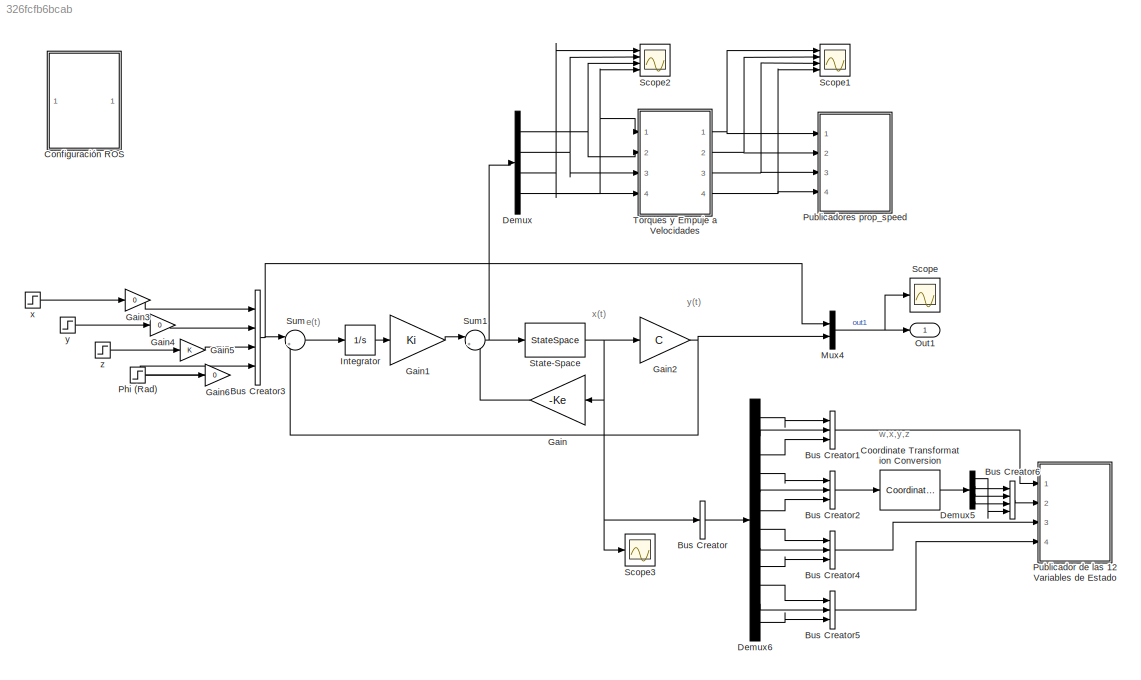
MODEL slx_326fcfb6bcab
KIND model
CONFIG AbsTol = auto
CONFIG EnableMultiTasking = off
CONFIG FixedStep = T
CONFIG MaxStep = auto
CONFIG MinStep = auto
CONFIG RelTol = 1e-3
CONFIG SampleTimeConstraint = Unconstrained
CONFIG SolverName = FixedStepAuto
CONFIG StartTime = 0.0
CONFIG StopTime = 20
BLOCK [BusCreator] Bus Creator
  DisplayOption = bar
  InheritFromInputs = on
  Inputs = 1
  Ports = [1, 1]
BLOCK [BusCreator] Bus Creator1
  DisplayOption = bar
  InheritFromInputs = on
  Inputs = 3
  Ports = [3, 1]
BLOCK [BusCreator] Bus Creator2
  DisplayOption = bar
  InheritFromInputs = on
  Inputs = 3
  Ports = [3, 1]
BLOCK [BusCreator] Bus Creator3
  DisplayOption = bar
  InheritFromInputs = on
  Inputs = 4
  Ports = [4, 1]
BLOCK [BusCreator] Bus Creator4
  DisplayOption = bar
  InheritFromInputs = on
  Inputs = 3
  Ports = [3, 1]
BLOCK [BusCreator] Bus Creator5
  DisplayOption = bar
  InheritFromInputs = on
  Inputs = 3
  Ports = [3, 1]
BLOCK [BusCreator] Bus Creator6
  DisplayOption = bar
  InheritFromInputs = on
  Inputs = 4
  Ports = [4, 1]
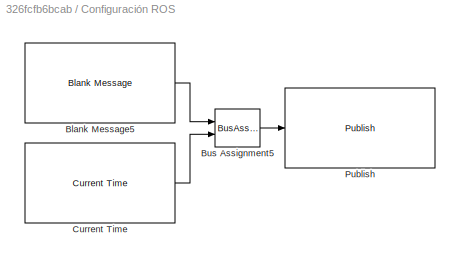
BLOCK [SubSystem] Configuración ROS
  Ports = []
  RequestExecContextInheritance = off
BLOCK [Reference] Configuración ROS/Blank Message5  REF=robotlib/Blank Message
  Ports = [0, 1]
  SourceBlock = robotlib/Blank Message
  SourceProductBaseCode = RR
  SourceType = ROS Blank Message
BLOCK [BusAssignment] Configuración ROS/Bus Assignment5
  AssignedSignals = Clock_
  Ports = [2, 1]
BLOCK [Reference] Configuración ROS/Current Time  REF=robotlib/Current Time
  Ports = [0, 1]
  SourceBlock = robotlib/Current Time
  SourceProductBaseCode = RR
  SourceType = ros.slros.internal.block.CurrentTime
BLOCK [Reference] Configuración ROS/Publish  REF=robotlib/Publish
  Ports = [1]
  SourceBlock = robotlib/Publish
  SourceProductBaseCode = RR
  SourceType = ROS Publish
BLOCK [Reference] Coordinate Transformation Conversion  REF=robotcorelib/Coordinate Transformation Conversion
  Ports = [1, 1]
  SourceBlock = robotcorelib/Coordinate Transformation Conversion
  SourceProductBaseCode = NV,RO,RR,UV
  SourceType = robotics.slcore.internal.block.CoordinateTransformationConversion
BLOCK [Demux] Demux
  Ports = [1, 4]
BLOCK [Demux] Demux5
  Ports = [1, 4]
BLOCK [Demux] Demux6
  Outputs = 12
  Ports = [1, 12]
BLOCK [Gain] Gain
  Gain = -Ke
  Multiplication = Matrix(K*u) (u vector)
BLOCK [Gain] Gain1
  Gain = Ki
  Multiplication = Matrix(K*u) (u vector)
BLOCK [Gain] Gain2
  Gain = C
  Multiplication = Matrix(K*u) (u vector)
BLOCK [Gain] Gain3
  Gain = 0
BLOCK [Gain] Gain4
  Gain = 0
BLOCK [Gain] Gain5
BLOCK [Gain] Gain6
  Gain = 0
BLOCK [Integrator] Integrator
  Ports = [1, 1]
BLOCK [Mux] Mux4
  DisplayOption = bar
  Inputs = 2
  Ports = [2, 1]
BLOCK [Outport] Out1
BLOCK [Step] Phi (Rad)
  SampleTime = T
  Time = 3
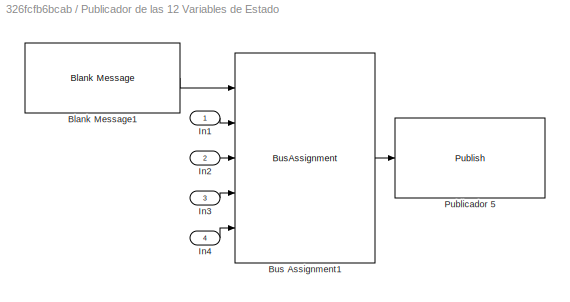
BLOCK [SubSystem] Publicador de las 12 Variables de Estado
  Ports = [4]
  RequestExecContextInheritance = off
BLOCK [Reference] Publicador de las 12 Variables de Estado/Blank Message1  REF=robotlib/Blank Message
  Ports = [0, 1]
  SourceBlock = robotlib/Blank Message
  SourceProductBaseCode = RR
  SourceType = ROS Blank Message
BLOCK [BusAssignment] Publicador de las 12 Variables de Estado/Bus Assignment1
  AssignedSignals = Pose.Position,Pose.Orientation,Twist.Linear,Twist.Angular
  Ports = [5, 1]
BLOCK [Inport] Publicador de las 12 Variables de Estado/In1
BLOCK [Inport] Publicador de las 12 Variables de Estado/In2
  Port = 2
BLOCK [Inport] Publicador de las 12 Variables de Estado/In3
  Port = 3
BLOCK [Inport] Publicador de las 12 Variables de Estado/In4
  Port = 4
BLOCK [Reference] Publicador de las 12 Variables de Estado/Publicador 5  REF=robotlib/Publish
  Ports = [1]
  SourceBlock = robotlib/Publish
  SourceProductBaseCode = RR
  SourceType = ROS Publish
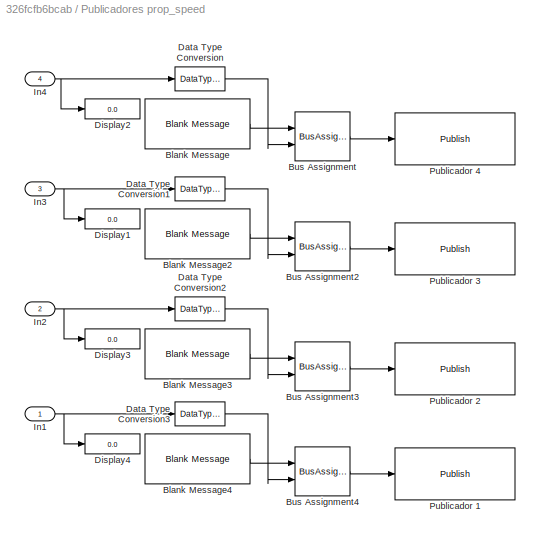
BLOCK [SubSystem] Publicadores prop_speed
  Ports = [4]
  RequestExecContextInheritance = off
BLOCK [Reference] Publicadores prop_speed/Blank Message  REF=robotlib/Blank Message
  Ports = [0, 1]
  SourceBlock = robotlib/Blank Message
  SourceProductBaseCode = RR
  SourceType = ROS Blank Message
BLOCK [Reference] Publicadores prop_speed/Blank Message2  REF=robotlib/Blank Message
  Ports = [0, 1]
  SourceBlock = robotlib/Blank Message
  SourceProductBaseCode = RR
  SourceType = ROS Blank Message
BLOCK [Reference] Publicadores prop_speed/Blank Message3  REF=robotlib/Blank Message
  Ports = [0, 1]
  SourceBlock = robotlib/Blank Message
  SourceProductBaseCode = RR
  SourceType = ROS Blank Message
BLOCK [Reference] Publicadores prop_speed/Blank Message4  REF=robotlib/Blank Message
  Ports = [0, 1]
  SourceBlock = robotlib/Blank Message
  SourceProductBaseCode = RR
  SourceType = ROS Blank Message
BLOCK [BusAssignment] Publicadores prop_speed/Bus Assignment
  AssignedSignals = Data
  Ports = [2, 1]
BLOCK [BusAssignment] Publicadores prop_speed/Bus Assignment2
  AssignedSignals = Data
  Ports = [2, 1]
BLOCK [BusAssignment] Publicadores prop_speed/Bus Assignment3
  AssignedSignals = Data
  Ports = [2, 1]
BLOCK [BusAssignment] Publicadores prop_speed/Bus Assignment4
  AssignedSignals = Data
  Ports = [2, 1]
BLOCK [DataTypeConversion] Publicadores prop_speed/Data Type Conversion
  OutDataTypeStr = single
  RndMeth = Floor
  SaturateOnIntegerOverflow = off
BLOCK [DataTypeConversion] Publicadores prop_speed/Data Type Conversion1
  NameLocation = top
  OutDataTypeStr = single
  RndMeth = Floor
  SaturateOnIntegerOverflow = off
BLOCK [DataTypeConversion] Publicadores prop_speed/Data Type Conversion2
  OutDataTypeStr = single
  RndMeth = Floor
  SaturateOnIntegerOverflow = off
BLOCK [DataTypeConversion] Publicadores prop_speed/Data Type Conversion3
  OutDataTypeStr = single
  RndMeth = Floor
  SaturateOnIntegerOverflow = off
BLOCK [Display] Publicadores prop_speed/Display1
  Decimation = 1
  Ports = [1]
BLOCK [Display] Publicadores prop_speed/Display2
  Decimation = 1
  Ports = [1]
BLOCK [Display] Publicadores prop_speed/Display3
  Decimation = 1
  Ports = [1]
BLOCK [Display] Publicadores prop_speed/Display4
  Decimation = 1
  Ports = [1]
BLOCK [Inport] Publicadores prop_speed/In1
BLOCK [Inport] Publicadores prop_speed/In2
  Port = 2
BLOCK [Inport] Publicadores prop_speed/In3
  Port = 3
BLOCK [Inport] Publicadores prop_speed/In4
  Port = 4
BLOCK [Reference] Publicadores prop_speed/Publicador 1  REF=robotlib/Publish
  Ports = [1]
  SourceBlock = robotlib/Publish
  SourceProductBaseCode = RR
  SourceType = ROS Publish
BLOCK [Reference] Publicadores prop_speed/Publicador 2  REF=robotlib/Publish
  Ports = [1]
  SourceBlock = robotlib/Publish
  SourceProductBaseCode = RR
  SourceType = ROS Publish
BLOCK [Reference] Publicadores prop_speed/Publicador 3  REF=robotlib/Publish
  Ports = [1]
  SourceBlock = robotlib/Publish
  SourceProductBaseCode = RR
  SourceType = ROS Publish
BLOCK [Reference] Publicadores prop_speed/Publicador 4  REF=robotlib/Publish
  Ports = [1]
  SourceBlock = robotlib/Publish
  SourceProductBaseCode = RR
  SourceType = ROS Publish
BLOCK [Scope] Scope
  Floating = off
  NumInputPorts = 1
  Ports = [1]
  ScopeSpecificationString = Simulink.scopes.TimeScopeBlockCfg('CurrentConfiguration', extmgr.ConfigurationSet(extmgr.Configuration('Core','General UI',true),extmgr.Configuration('Core','Source UI',true),extmgr.Configuration('Sources','WiredSimulink',true),extmgr.Configuration('Visuals','Time Domain',true,'SerializedDisplays',{struct('MinYLimReal','-0.375','MaxYLimReal','3.375','YLabelReal','','MinYLimMag','0.00000','MaxYLimM...<+1742ch>
BLOCK [Scope] Scope1
  Floating = off
  NumInputPorts = 4
  Ports = [4]
  ScopeSpecificationString = Simulink.scopes.TimeScopeBlockCfg('CurrentConfiguration', extmgr.ConfigurationSet(extmgr.Configuration('Core','General UI',true),extmgr.Configuration('Core','Source UI',true),extmgr.Configuration('Sources','WiredSimulink',true,'DataLoggingVariableName','ScopeData1'),extmgr.Configuration('Visuals','Time Domain',true,'SerializedDisplays',{struct('MinYLimReal','15.06231','MaxYLimReal','114.43919','YL...<+1909ch>
BLOCK [Scope] Scope2
  Floating = off
  NumInputPorts = 4
  Ports = [4]
  ScopeSpecificationString = Simulink.scopes.TimeScopeBlockCfg('CurrentConfiguration', extmgr.ConfigurationSet(extmgr.Configuration('Core','General UI',true),extmgr.Configuration('Core','Source UI',true),extmgr.Configuration('Sources','WiredSimulink',true,'DataLoggingVariableName','ScopeData2'),extmgr.Configuration('Visuals','Time Domain',true,'SerializedDisplays',{struct('MinYLimReal','-20.70474','MaxYLimReal','9.36899','YLa...<+1542ch>
BLOCK [Scope] Scope3
  Floating = off
  NumInputPorts = 1
  Ports = [1]
  ScopeSpecificationString = Simulink.scopes.TimeScopeBlockCfg('CurrentConfiguration', extmgr.ConfigurationSet(extmgr.Configuration('Core','General UI',true),extmgr.Configuration('Core','Source UI',true),extmgr.Configuration('Sources','WiredSimulink',true,'DataLoggingVariableName','ScopeData1'),extmgr.Configuration('Visuals','Time Domain',true,'SerializedDisplays',{struct('MinYLimReal','-0.53341','MaxYLimReal','4.80071','YLab...<+1876ch>
BLOCK [StateSpace] State-Space
  A = A
  B = B
  C = eye(12)
  D = D
  InitialCondition = 0
  ParameterTunability = Unconstrained
  Ports = [1, 1]
BLOCK [Sum] Sum
  Inputs = |+-
  Ports = [2, 1]
BLOCK [Sum] Sum1
  Inputs = |+-
  Ports = [2, 1]
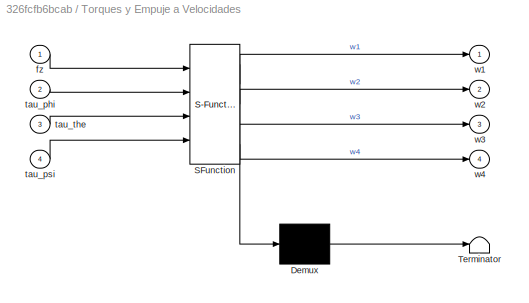
BLOCK [SubSystem] Torques y Empuje a Velocidades
  ErrorFcn = Stateflow.Translate.translate
  PermitHierarchicalResolution = ExplicitOnly
  Ports = [4, 4]
  RequestExecContextInheritance = off
  SFBlockType = MATLAB Function
  TreatAsAtomicUnit = on
BLOCK [Demux] Torques y Empuje a Velocidades/ Demux 
  Outputs = 1
  Ports = [1, 1]
BLOCK [S-Function] Torques y Empuje a Velocidades/ SFunction 
  EnableBusSupport = on
  FunctionName = sf_sfun
  PortCounts = [4 5]
  Ports = [4, 5]
  SFcnIsStateOwnerBlock = off
  SFunctionDeploymentMode = off
  Tag = Stateflow S-Function 1
BLOCK [Terminator] Torques y Empuje a Velocidades/ Terminator 
BLOCK [Inport] Torques y Empuje a Velocidades/fz
BLOCK [Inport] Torques y Empuje a Velocidades/tau_phi
  Port = 2
BLOCK [Inport] Torques y Empuje a Velocidades/tau_psi
  Port = 4
BLOCK [Inport] Torques y Empuje a Velocidades/tau_the
  Port = 3
BLOCK [Outport] Torques y Empuje a Velocidades/w1
BLOCK [Outport] Torques y Empuje a Velocidades/w2
  Port = 2
BLOCK [Outport] Torques y Empuje a Velocidades/w3
  Port = 3
BLOCK [Outport] Torques y Empuje a Velocidades/w4
  Port = 4
BLOCK [Step] x
  After = 2
  SampleTime = T
  Time = 10
BLOCK [Step] y
  After = 2
  SampleTime = T
  Time = 15
BLOCK [Step] z
  After = 3
  SampleTime = T
  Time = 0
ANNOTATION (root): e(t)
ANNOTATION (root): w,x,y,z
ANNOTATION (root): x(t)
ANNOTATION (root): y(t)
LINE Bus Creator1:1 -> Publicador de las 12 Variables de Estado:1
LINE Bus Creator2:1 -> Coordinate Transformation Conversion:1
NET Bus Creator3:1 -> Mux4:1, Sum:1
LINE Bus Creator4:1 -> Publicador de las 12 Variables de Estado:3
LINE Bus Creator5:1 -> Publicador de las 12 Variables de Estado:4
LINE Bus Creator6:1 -> Publicador de las 12 Variables de Estado:2
LINE Bus Creator:1 -> Demux6:1
LINE Configuración ROS/Blank Message5:1 -> Configuración ROS/Bus Assignment5:1
LINE Configuración ROS/Bus Assignment5:1 -> Configuración ROS/Publish:1
LINE Configuración ROS/Current Time:1 -> Configuración ROS/Bus Assignment5:2
LINE Coordinate Transformation Conversion:1 -> Demux5:1
LINE Demux5:1 -> Bus Creator6:4
LINE Demux5:2 -> Bus Creator6:1
LINE Demux5:3 -> Bus Creator6:2
LINE Demux5:4 -> Bus Creator6:3
LINE Demux6:1 -> Bus Creator1:1
LINE Demux6:10 -> Bus Creator5:1
LINE Demux6:11 -> Bus Creator5:2
LINE Demux6:12 -> Bus Creator5:3
LINE Demux6:2 -> Bus Creator1:2
LINE Demux6:3 -> Bus Creator1:3
LINE Demux6:4 -> Bus Creator2:1
LINE Demux6:5 -> Bus Creator2:2
LINE Demux6:6 -> Bus Creator2:3
LINE Demux6:7 -> Bus Creator4:1
LINE Demux6:8 -> Bus Creator4:2
LINE Demux6:9 -> Bus Creator4:3
NET Demux:1 -> Scope2:3, Torques y Empuje a Velocidades:2
NET Demux:2 -> Scope2:2, Torques y Empuje a Velocidades:3
NET Demux:3 -> Scope2:1, Torques y Empuje a Velocidades:4
NET Demux:4 -> Scope2:4, Torques y Empuje a Velocidades:1
LINE Gain1:1 -> Sum1:1
NET Gain2:1 -> Mux4:2, Sum:2
LINE Gain3:1 -> Bus Creator3:1
LINE Gain4:1 -> Bus Creator3:2
LINE Gain5:1 -> Bus Creator3:3
LINE Gain6:1 -> Bus Creator3:4
LINE Gain:1 -> Sum1:2
LINE Integrator:1 -> Gain1:1
NET Mux4:1 -> Out1:1, Scope:1
LINE Phi (Rad):1 -> Gain6:1
LINE Publicador de las 12 Variables de Estado/Blank Message1:1 -> Publicador de las 12 Variables de Estado/Bus Assignment1:1
LINE Publicador de las 12 Variables de Estado/Bus Assignment1:1 -> Publicador de las 12 Variables de Estado/Publicador 5:1
LINE Publicador de las 12 Variables de Estado/In1:1 -> Publicador de las 12 Variables de Estado/Bus Assignment1:2
LINE Publicador de las 12 Variables de Estado/In2:1 -> Publicador de las 12 Variables de Estado/Bus Assignment1:3
LINE Publicador de las 12 Variables de Estado/In3:1 -> Publicador de las 12 Variables de Estado/Bus Assignment1:4
LINE Publicador de las 12 Variables de Estado/In4:1 -> Publicador de las 12 Variables de Estado/Bus Assignment1:5
LINE Publicadores prop_speed/Blank Message2:1 -> Publicadores prop_speed/Bus Assignment2:1
LINE Publicadores prop_speed/Blank Message3:1 -> Publicadores prop_speed/Bus Assignment3:1
LINE Publicadores prop_speed/Blank Message4:1 -> Publicadores prop_speed/Bus Assignment4:1
LINE Publicadores prop_speed/Blank Message:1 -> Publicadores prop_speed/Bus Assignment:1
LINE Publicadores prop_speed/Bus Assignment2:1 -> Publicadores prop_speed/Publicador 3:1
LINE Publicadores prop_speed/Bus Assignment3:1 -> Publicadores prop_speed/Publicador 2:1
LINE Publicadores prop_speed/Bus Assignment4:1 -> Publicadores prop_speed/Publicador 1:1
LINE Publicadores prop_speed/Bus Assignment:1 -> Publicadores prop_speed/Publicador 4:1
LINE Publicadores prop_speed/Data Type Conversion1:1 -> Publicadores prop_speed/Bus Assignment2:2
LINE Publicadores prop_speed/Data Type Conversion2:1 -> Publicadores prop_speed/Bus Assignment3:2
LINE Publicadores prop_speed/Data Type Conversion3:1 -> Publicadores prop_speed/Bus Assignment4:2
LINE Publicadores prop_speed/Data Type Conversion:1 -> Publicadores prop_speed/Bus Assignment:2
NET Publicadores prop_speed/In1:1 -> Publicadores prop_speed/Data Type Conversion3:1, Publicadores prop_speed/Display4:1
NET Publicadores prop_speed/In2:1 -> Publicadores prop_speed/Data Type Conversion2:1, Publicadores prop_speed/Display3:1
NET Publicadores prop_speed/In3:1 -> Publicadores prop_speed/Data Type Conversion1:1, Publicadores prop_speed/Display1:1
NET Publicadores prop_speed/In4:1 -> Publicadores prop_speed/Data Type Conversion:1, Publicadores prop_speed/Display2:1
NET State-Space:1 -> Bus Creator:1, Gain2:1, Gain:1, Scope3:1
NET Sum1:1 -> Demux:1, State-Space:1
LINE Sum:1 -> Integrator:1
NET Torques y Empuje a Velocidades:1 -> Publicadores prop_speed:1, Scope1:1
NET Torques y Empuje a Velocidades:2 -> Publicadores prop_speed:2, Scope1:2
NET Torques y Empuje a Velocidades:3 -> Publicadores prop_speed:3, Scope1:3
NET Torques y Empuje a Velocidades:4 -> Publicadores prop_speed:4, Scope1:4
LINE x:1 -> Gain3:1
LINE y:1 -> Gain4:1
LINE z:1 -> Gain5:1
note: NET lines group one-source signal fan-out (src -> all destinations, sorted); 1:1 wires keep LINE
CHART Torques y Empuje a Velocidades states=1 transitions=1
  STATE_LABEL 'eML_blk_kernel()'
  STATE_LABEL 'SCRIPT:\nfunction [w1,w2,w3,w4] = H(fz,tau_phi,tau_the,tau_psi)\n%         Salidas          Entradas\n\n% Constantes \nl = 0.2;    % m\nkf = 0.007; % Nm/A\nkm = 0.8;   % V/kRPM\n\n% Matriz H\nH = [kf     kf      kf      kf;\n     0      l*kf    0       -l*kf;\n     -l*kf  0       l*kf    0;  \n     km     -km     km      -km];\n \n% Inversa de H\nH_inversa = inv(H);\n\n% Vector de entrada\nTorques = [fz;\n           ...<+459ch>'
CHART  states=0 transitions=0
